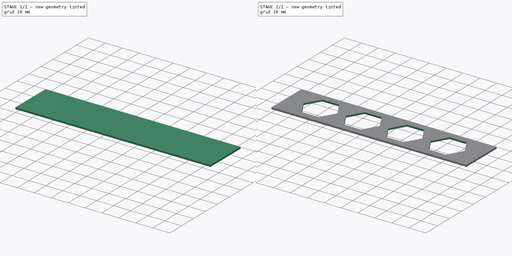
[diagram: build sequence overview — one tinted view per stage of 2, left to right]
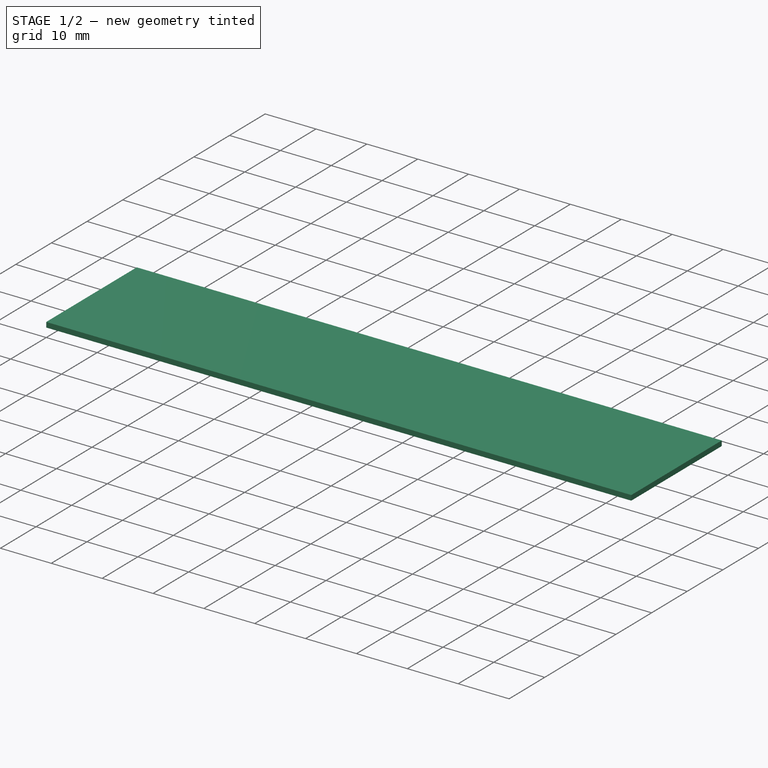
[diagram: stage 1 of 2 — iso view after this stage's code; geometry added in this stage tinted green]
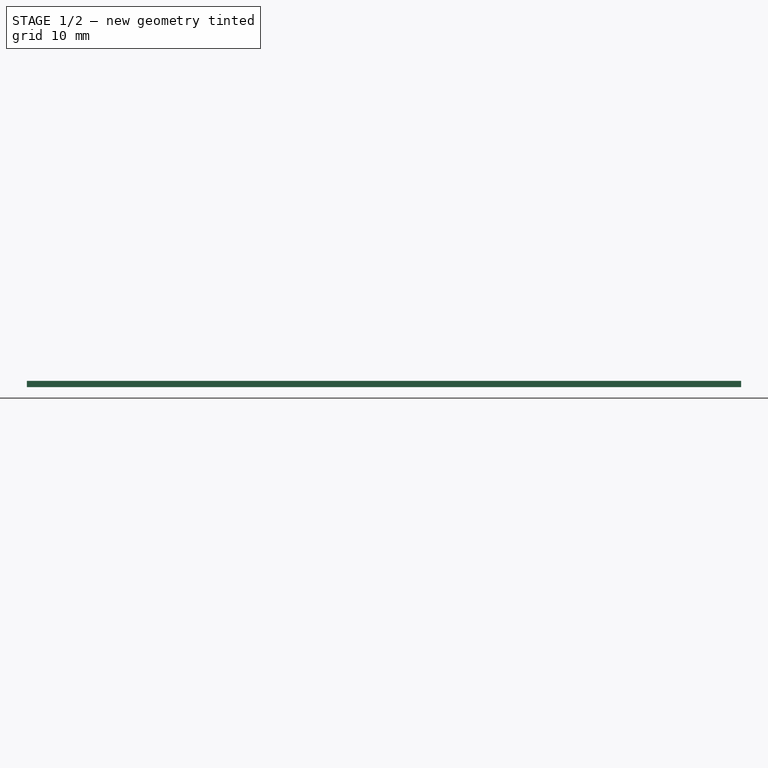
[diagram: stage 1 of 2 — front view after this stage's code; geometry added in this stage tinted green]
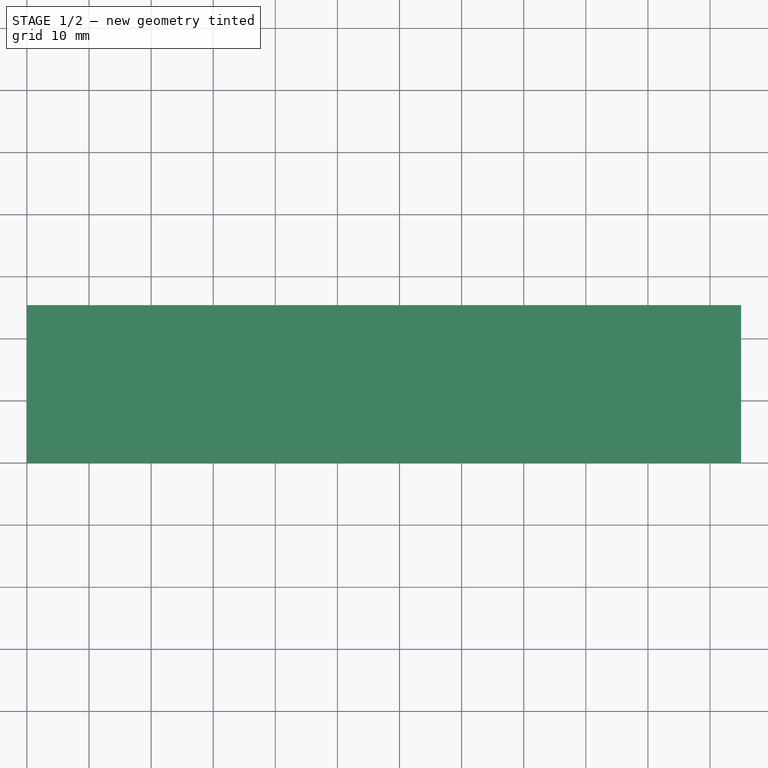
[diagram: stage 1 of 2 — top view after this stage's code; geometry added in this stage tinted green]
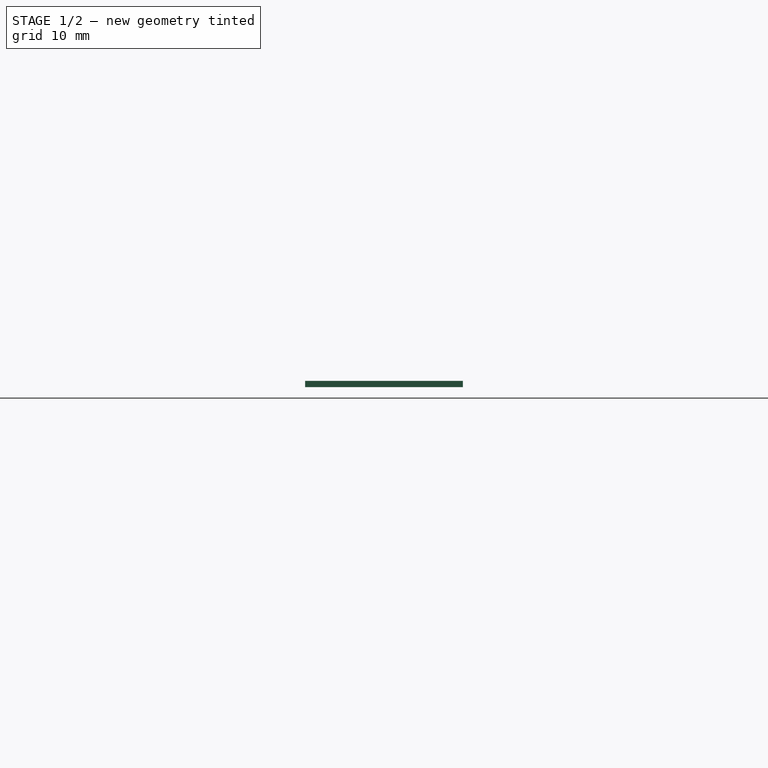
[diagram: stage 1 of 2 — right view after this stage's code; geometry added in this stage tinted green]
FCSTD DOCUMENT  (FreeCAD 0.17R13522 (Git))
Label: SH12
License: All rights reserved
LicenseURL: http://en.wikipedia.org/wiki/All_rights_reserved
objects: Part::Box×1, PartDesign::FeatureBase×1, Sketcher::SketchObject×1, PartDesign::Pocket×1, PartDesign::Body×1
note: 6 computed .brp shape members not serialized (recipe doc carries the construction recipe); baked Part::Feature solids carry a one-line shape summary decoded from their .brp

FEATURE [Part::Box] Box  label="Cube"
  AttacherType = Attacher::AttachEngine3D
  Height = 1
  Length = 115
  Width = 25.4
FEATURE [PartDesign::FeatureBase] BaseFeature
  BaseFeature = -> Box
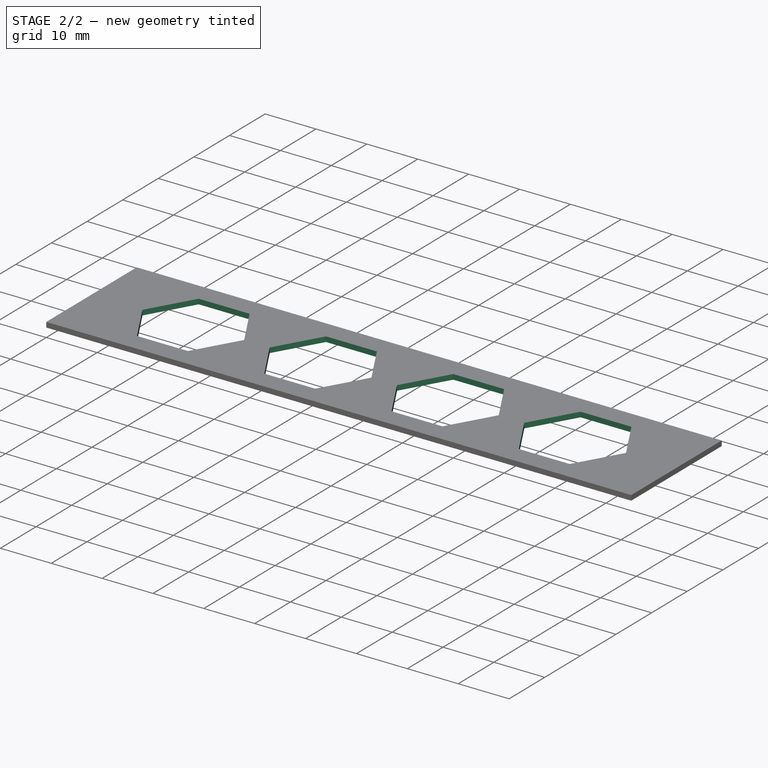
[diagram: stage 2 of 2 — iso view after this stage's code; geometry added in this stage tinted green]
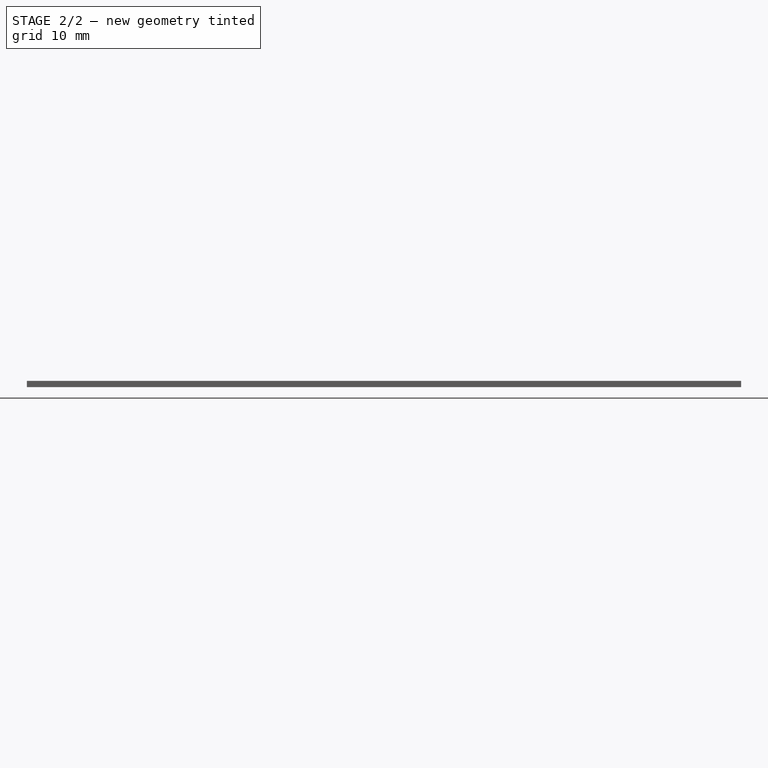
[diagram: stage 2 of 2 — front view after this stage's code; geometry added in this stage tinted green]
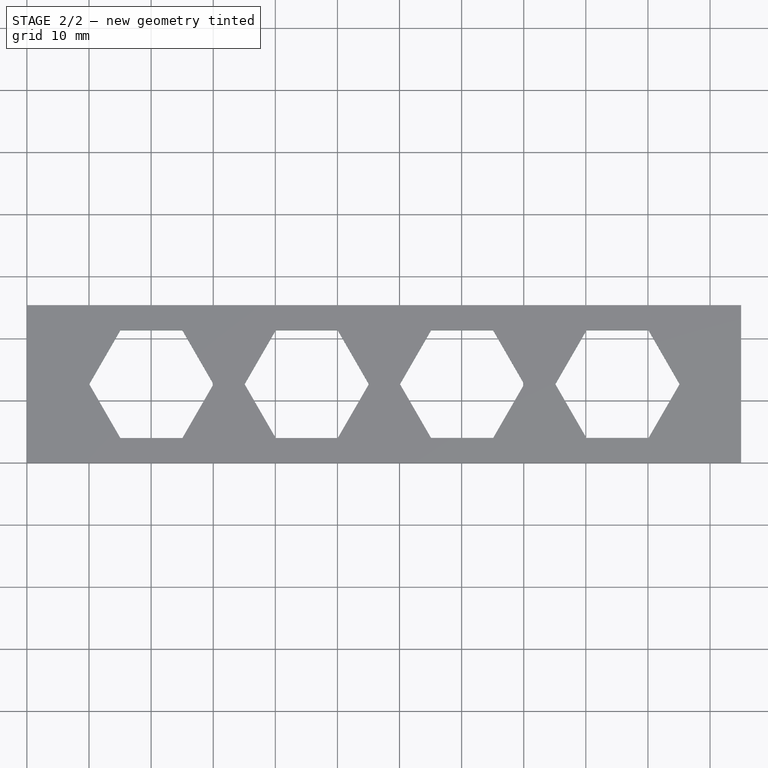
[diagram: stage 2 of 2 — top view after this stage's code; geometry added in this stage tinted green]
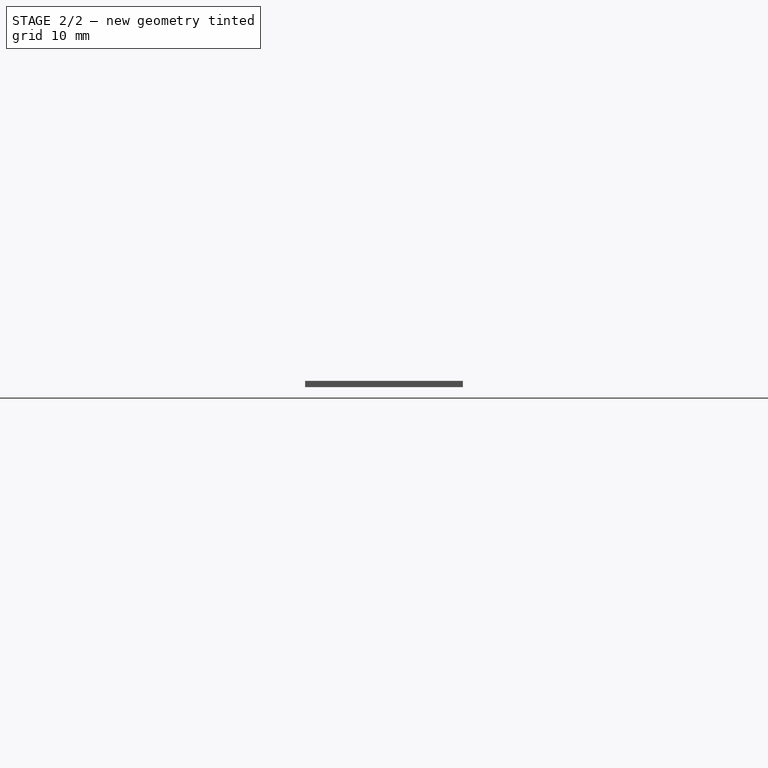
[diagram: stage 2 of 2 — right view after this stage's code; geometry added in this stage tinted green]
FEATURE [Sketcher::SketchObject] Sketch
  MapMode = 5
  Placement = pos=(0,0,1) rot=(0,0,1;0rad)
  Support = -> [BaseFeature]
  sketch-geometry (31):
    g0: LineSegment StartX=25.041 StartY=4.00328 StartZ=0 EndX=30.041 EndY=12.6635 EndZ=0
    g1: LineSegment StartX=30.041 StartY=12.6635 StartZ=0 EndX=25.041 EndY=21.3238 EndZ=0
    g2: LineSegment StartX=25.041 StartY=21.3238 StartZ=0 EndX=15.041 EndY=21.3238 EndZ=0
    g3: LineSegment StartX=15.041 StartY=21.3238 StartZ=0 EndX=10.041 EndY=12.6635 EndZ=0
    g4: LineSegment StartX=10.041 StartY=12.6635 StartZ=0 EndX=15.041 EndY=4.00328 EndZ=0
    g5: LineSegment StartX=15.041 StartY=4.00328 StartZ=0 EndX=25.041 EndY=4.00328 EndZ=0
    g6: Circle [constr] CenterX=20.041 CenterY=12.6635 CenterZ=0 NormalX=0 NormalY=0 NormalZ=1 AngleXU=0 Radius=10
    g7: LineSegment StartX=50.0589 StartY=4.00455 StartZ=0 EndX=55.0589 EndY=12.6648 EndZ=0
    g8: LineSegment StartX=55.0589 StartY=12.6648 StartZ=0 EndX=50.0589 EndY=21.3251 EndZ=0
    g9: LineSegment StartX=50.0589 StartY=21.3251 StartZ=0 EndX=40.0589 EndY=21.3251 EndZ=0
    g10: LineSegment StartX=40.0589 StartY=21.3251 StartZ=0 EndX=35.0589 EndY=12.6648 EndZ=0
    g11: LineSegment StartX=35.0589 StartY=12.6648 StartZ=0 EndX=40.0589 EndY=4.00455 EndZ=0
    g12: LineSegment StartX=40.0589 StartY=4.00455 StartZ=0 EndX=50.0589 EndY=4.00455 EndZ=0
    g13: Circle [constr] CenterX=45.0589 CenterY=12.6648 CenterZ=0 NormalX=0 NormalY=0 NormalZ=1 AngleXU=0 Radius=10
    g14: LineSegment [constr] StartX=25.041 StartY=4.00328 StartZ=0 EndX=50.0589 EndY=4.00455 EndZ=0
    g15: LineSegment StartX=75.0768 StartY=4.00582 StartZ=0 EndX=80.0768 EndY=12.6661 EndZ=0
    g16: LineSegment StartX=80.0768 StartY=12.6661 StartZ=0 EndX=75.0768 EndY=21.3263 EndZ=0
    g17: LineSegment StartX=75.0768 StartY=21.3263 StartZ=0 EndX=65.0768 EndY=21.3263 EndZ=0
    g18: LineSegment StartX=65.0768 StartY=21.3263 StartZ=0 EndX=60.0768 EndY=12.6661 EndZ=0
    g19: LineSegment StartX=60.0768 StartY=12.6661 StartZ=0 EndX=65.0768 EndY=4.00582 EndZ=0
    g20: LineSegment StartX=65.0768 StartY=4.00582 StartZ=0 EndX=75.0768 EndY=4.00582 EndZ=0
    g21: Circle [constr] CenterX=70.0768 CenterY=12.6661 CenterZ=0 NormalX=0 NormalY=0 NormalZ=1 AngleXU=0 Radius=10
    g22: LineSegment [constr] StartX=50.0589 StartY=4.00455 StartZ=0 EndX=75.0768 EndY=4.00582 EndZ=0
    g23: LineSegment StartX=100.095 StartY=4.00709 StartZ=0 EndX=105.095 EndY=12.6673 EndZ=0
    g24: LineSegment StartX=105.095 StartY=12.6673 StartZ=0 EndX=100.095 EndY=21.3276 EndZ=0
    g25: LineSegment StartX=100.095 StartY=21.3276 StartZ=0 EndX=90.0948 EndY=21.3276 EndZ=0
    g26: LineSegment StartX=90.0948 StartY=21.3276 StartZ=0 EndX=85.0948 EndY=12.6673 EndZ=0
    g27: LineSegment StartX=85.0948 StartY=12.6673 StartZ=0 EndX=90.0948 EndY=4.00709 EndZ=0
    g28: LineSegment StartX=90.0948 StartY=4.00709 StartZ=0 EndX=100.095 EndY=4.00709 EndZ=0
    g29: Circle [constr] CenterX=95.0948 CenterY=12.6673 CenterZ=0 NormalX=0 NormalY=0 NormalZ=1 AngleXU=0 Radius=10
    g30: LineSegment [constr] StartX=75.0768 StartY=4.00582 StartZ=0 EndX=100.095 EndY=4.00709 EndZ=0
  constraints (80):
    c: Coincident(g0,g1)
    c: Coincident(g1,g2)
    c: Coincident(g2,g3)
    c: Coincident(g3,g4)
    c: Coincident(g4,g5)
    c: Coincident(g5,g0)
    c: Equal(g0, g1-g5) x5
    c: PointOnObject(g0,g6)
    c: PointOnObject(g1,g6)
    c: PointOnObject(g2,g6)
    c: PointOnObject(g3,g6)
    c: PointOnObject(g4,g6)
    c: PointOnObject(g5,g6)
    c: DistanceX(g2,g2) = 10
    c: Equal(g2,g1)
    c: Equal(g0,g5)
    c: Equal(g4,g3)
    c: Coincident(g7,g8)
    c: Coincident(g8,g9)
    c: Coincident(g9,g10)
    c: Coincident(g10,g11)
    c: Coincident(g11,g12)
    c: Coincident(g12,g7)
    c: Equal(g7, g8-g12) x5
    c: PointOnObject(g7,g13)
    c: PointOnObject(g8,g13)
    c: PointOnObject(g9,g13)
    c: PointOnObject(g10,g13)
    c: PointOnObject(g11,g13)
    c: PointOnObject(g12,g13)
    c: Equal(g2,g9) = 10
    c: Equal(g9,g8)
    c: Equal(g7,g12)
    c: Equal(g11,g10)
    c: Coincident(g0,g14)
    c: Coincident(g7,g14)
    c: Distance(g14) = 25.0179
    c: Angle(g14) = 5.07636e-05
    c: Coincident(g15,g16)
    c: Coincident(g16,g17)
    c: Coincident(g17,g18)
    c: Coincident(g18,g19)
    c: Coincident(g19,g20)
    c: Coincident(g20,g15)
    c: Equal(g15, g16-g20) x5
    c: PointOnObject(g15,g21)
    c: PointOnObject(g16,g21)
    c: PointOnObject(g17,g21)
    c: PointOnObject(g18,g21)
    c: PointOnObject(g19,g21)
    c: PointOnObject(g20,g21)
    c: Equal(g2,g17) = 10
    c: Equal(g17,g16)
    c: Equal(g15,g20)
    c: Equal(g19,g18)
    c: Coincident(g7,g22)
    c: Coincident(g15,g22)
    c: Equal(g14,g22)
    c: Parallel(g22,g14)
    c: Coincident(g23,g24)
    c: Coincident(g24,g25)
    c: Coincident(g25,g26)
    c: Coincident(g26,g27)
    c: Coincident(g27,g28)
    c: Coincident(g28,g23)
    c: Equal(g23, g24-g28) x5
    c: PointOnObject(g23,g29)
    c: PointOnObject(g24,g29)
    c: PointOnObject(g25,g29)
    c: PointOnObject(g26,g29)
    c: PointOnObject(g27,g29)
    c: PointOnObject(g28,g29)
    c: Equal(g2,g25) = 10
    c: Equal(g25,g24)
    c: Equal(g23,g28)
    c: Equal(g27,g26)
    c: Coincident(g15,g30)
    c: Coincident(g23,g30)
    c: Equal(g14,g30)
    c: Parallel(g30,g14)
FEATURE [PartDesign::Pocket] Pocket
  BaseFeature = -> BaseFeature
  Length = 5
  Length2 = 100
  Profile = -> Sketch
  Type = 0
FEATURE [PartDesign::Body] Body
  BaseFeature = -> Box
  Group = -> [BaseFeature,Sketch,Pocket]
  Origin = -> Origin
  Tip = -> Pocket
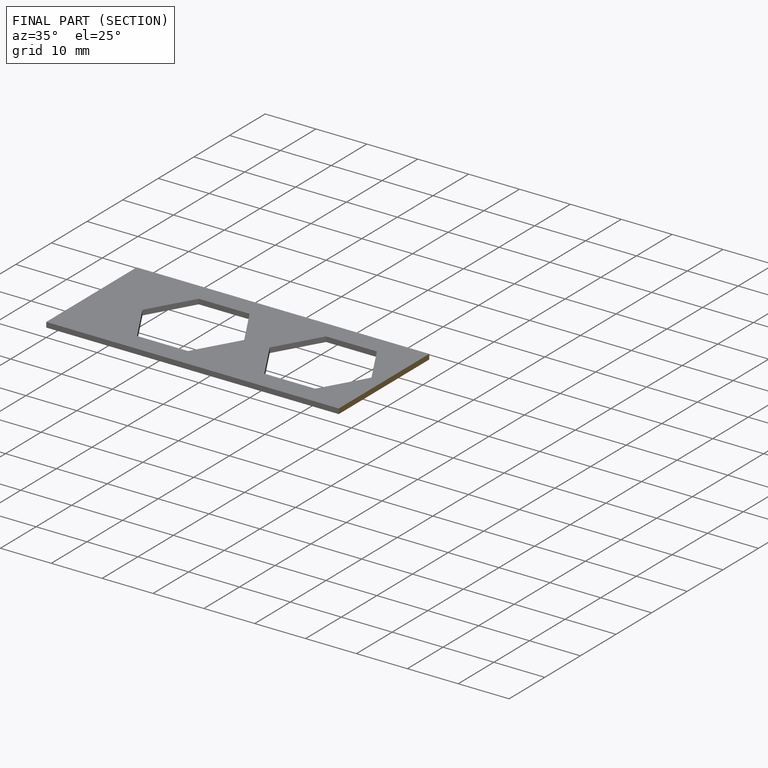
[diagram: finished part — half-section view (interior)]
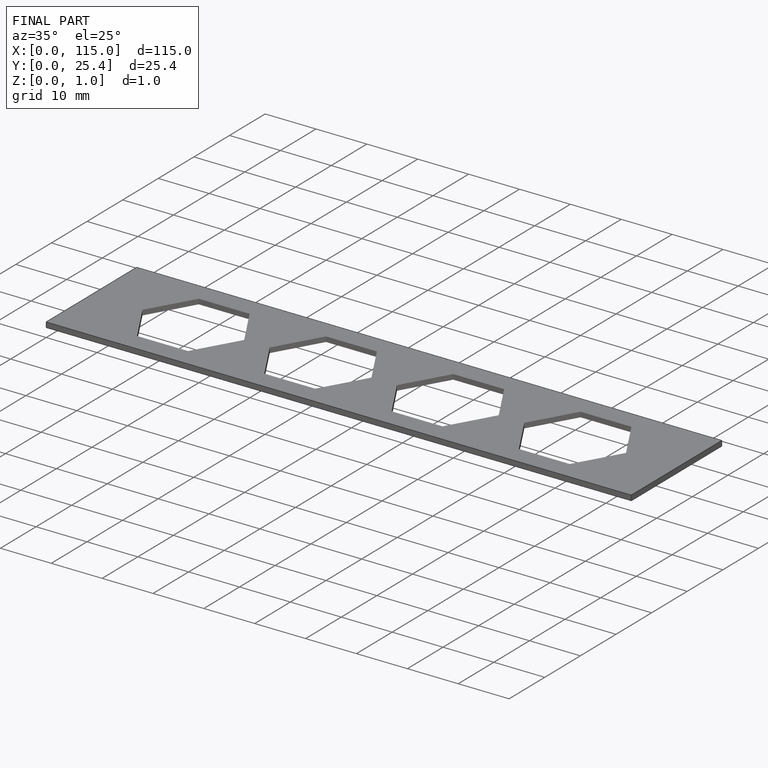
[diagram: finished part — iso view with bounding-box wireframe]
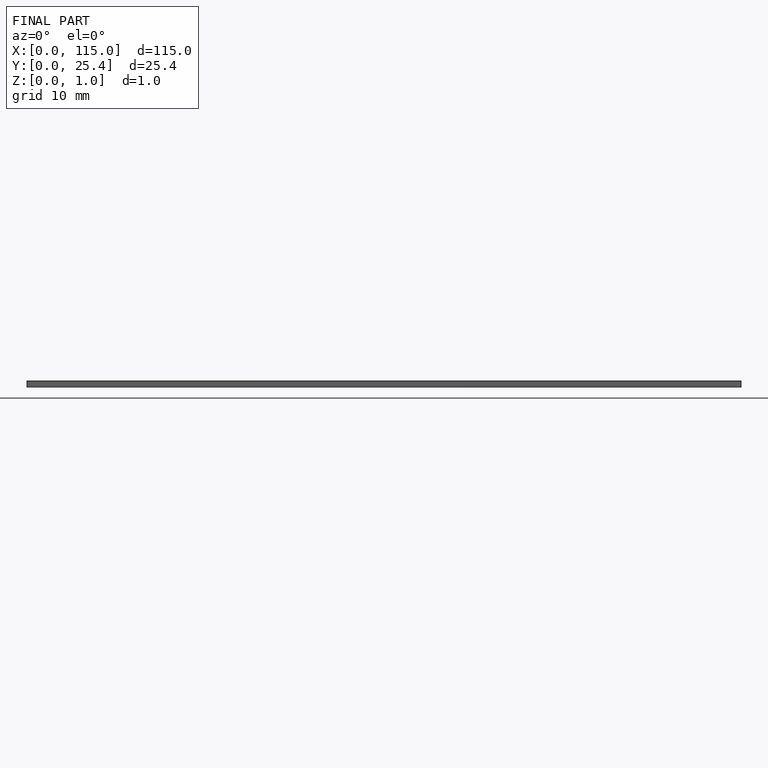
[diagram: finished part — front view with bounding-box wireframe]
